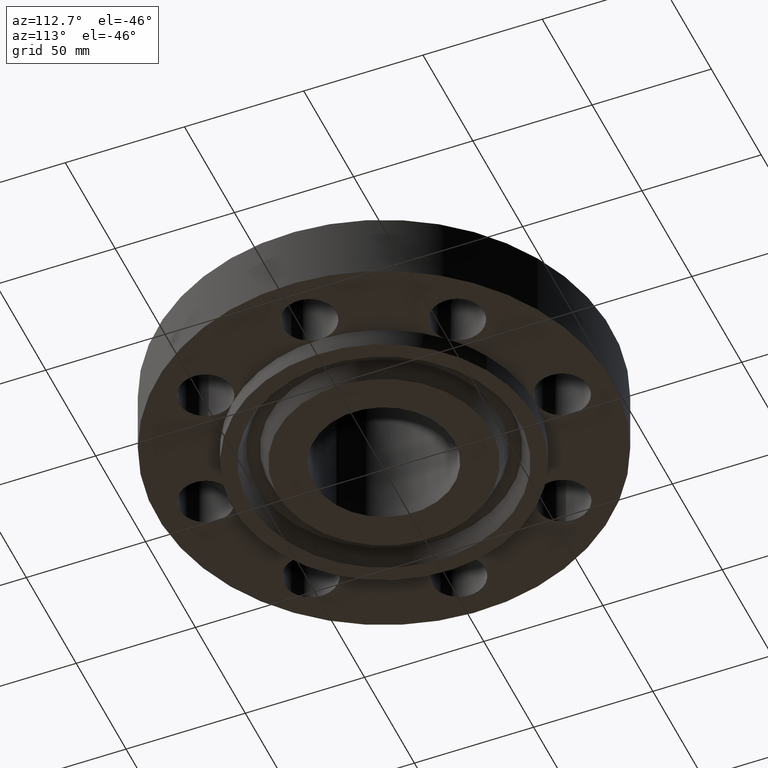
[diagram: clean part render]
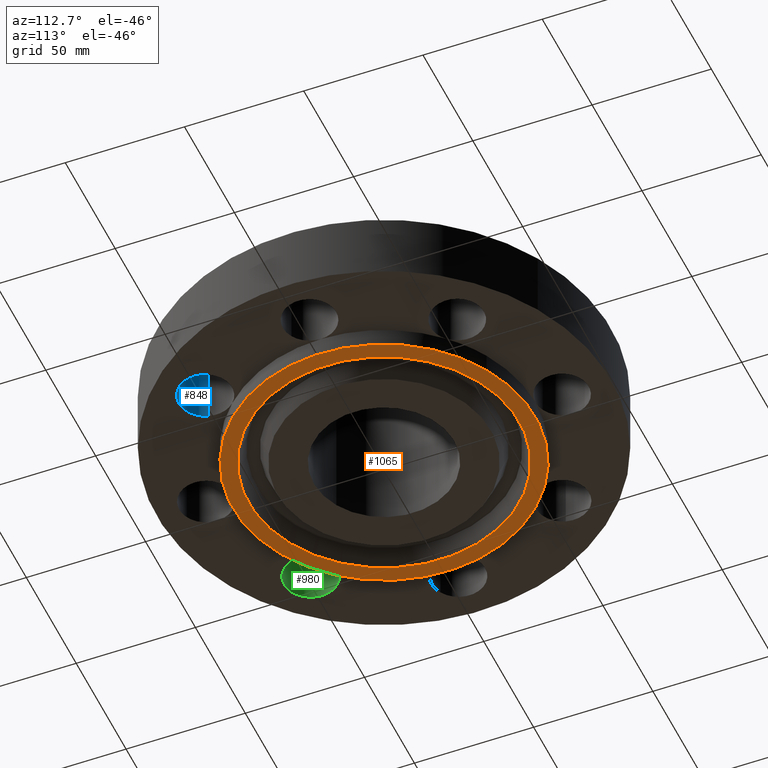
[diagram: same view with three faces highlighted in distinct colors, each labeled with its STEP entity id]
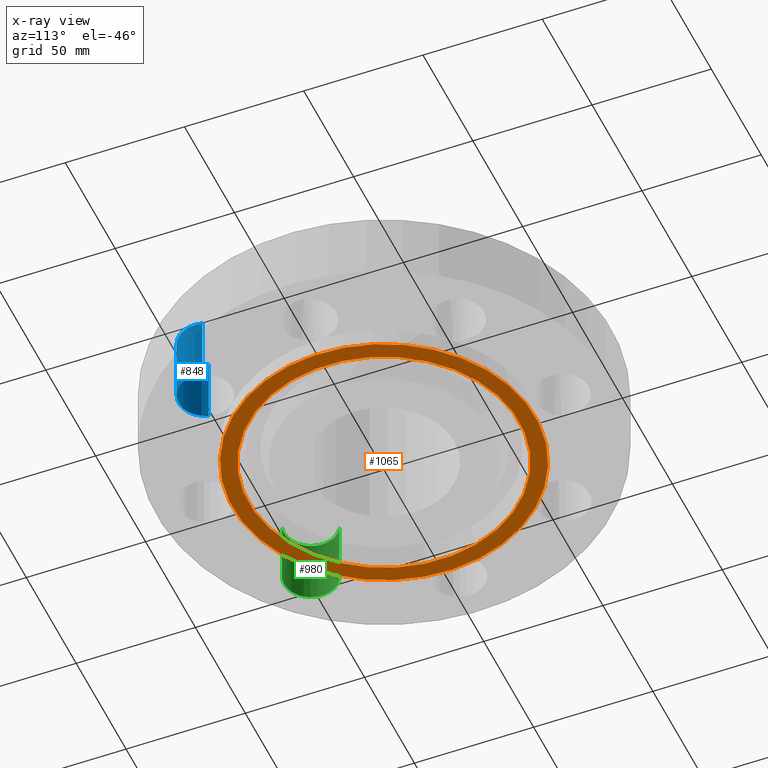
[diagram: x-ray of the same camera — body ghosted, the three highlighted faces saturated]
A machine part, auxiliary view with three faces highlighted in distinct colors.
The next image is the same camera in x-ray (body ghosted, the three faces saturated) — at least one of them is partly hidden behind the body in this view.
Their STEP definitions:

[orange] entity #1065 — the highlighted planar face has unit normal (0, 0, -1).
#439=AXIS2_PLACEMENT_3D('Circle Axis2P3D',#437,#438,$) ;
#504=AXIS2_PLACEMENT_3D('Circle Axis2P3D',#502,#503,$) ;
#1041=AXIS2_PLACEMENT_3D('Plane Axis2P3D',#1038,#1039,#1040) ;
#1049=AXIS2_PLACEMENT_3D('Circle Axis2P3D',#1047,#1048,$) ;
#1058=AXIS2_PLACEMENT_3D('Circle Axis2P3D',#1056,#1057,$) ;
#437=CARTESIAN_POINT('Axis2P3D Location',(0.,0.,-0.313000000001)) ;
#441=CARTESIAN_POINT('Vertex',(-1.19856384652,-2.19395640473,-0.313000000001)) ;
#443=CARTESIAN_POINT('Vertex',(1.19856384652,2.19395640473,-0.313000000001)) ;
#502=CARTESIAN_POINT('Axis2P3D Location',(0.,0.,-0.313000000001)) ;
#1038=CARTESIAN_POINT('Axis2P3D Location',(0.,1.1615,-0.313000000001)) ;
#1047=CARTESIAN_POINT('Axis2P3D Location',(2.09805925913E-016,-1.39870617276E-016,-0.313000000001)) ;
#1051=CARTESIAN_POINT('Vertex',(1.07127636602,-1.96095823455,-0.313000000001)) ;
#1053=CARTESIAN_POINT('Vertex',(-1.07127636602,1.96095823455,-0.313000000001)) ;
#1056=CARTESIAN_POINT('Axis2P3D Location',(0.,-2.79741234551E-016,-0.313000000001)) ;
#438=DIRECTION('Axis2P3D Direction',(0.,0.,-0.0393700787402)) ;
#503=DIRECTION('Axis2P3D Direction',(0.,0.,-0.0393700787402)) ;
#1039=DIRECTION('Axis2P3D Direction',(0.,0.,-0.0393700787402)) ;
#1040=DIRECTION('Axis2P3D XDirection',(0.0393700787402,0.,0.)) ;
#1048=DIRECTION('Axis2P3D Direction',(0.,0.,-0.0393700787402)) ;
#1057=DIRECTION('Axis2P3D Direction',(0.,0.,-0.0393700787402)) ;
#1044=ORIENTED_EDGE('',*,*,#445,.T.) ;
#1045=ORIENTED_EDGE('',*,*,#506,.T.) ;
#1062=ORIENTED_EDGE('',*,*,#1055,.F.) ;
#1063=ORIENTED_EDGE('',*,*,#1060,.F.) ;
#1064=FACE_BOUND('',#1061,.T.) ;
#1065=ADVANCED_FACE('PartBody',(#1046,#1064),#1042,.T.) ;
#440=CIRCLE('generated circle',#439,2.50000000001) ;
#505=CIRCLE('generated circle',#504,2.50000000001) ;
#1050=CIRCLE('generated circle',#1049,2.23450000001) ;
#1059=CIRCLE('generated circle',#1058,2.23450000001) ;
#445=EDGE_CURVE('',#442,#444,#440,.T.) ;
#506=EDGE_CURVE('',#444,#442,#505,.T.) ;
#1055=EDGE_CURVE('',#1052,#1054,#1050,.T.) ;
#1060=EDGE_CURVE('',#1054,#1052,#1059,.T.) ;
#1043=EDGE_LOOP('',(#1044,#1045)) ;
#1061=EDGE_LOOP('',(#1062,#1063)) ;
#1046=FACE_OUTER_BOUND('',#1043,.T.) ;
#1042=PLANE('',#1041) ;
#442=VERTEX_POINT('',#441) ;
#444=VERTEX_POINT('',#443) ;
#1052=VERTEX_POINT('',#1051) ;
#1054=VERTEX_POINT('',#1053) ;

[blue] entity #848 — the highlighted cylindrical surface (edge-blend (fillet) strip) has radius 11.176 mm, axis along (-0, 0, -1).
#683=AXIS2_PLACEMENT_3D('Circle Axis2P3D',#681,#682,$) ;
#821=AXIS2_PLACEMENT_3D('Cylinder Axis2P3D',#818,#819,#820) ;
#839=AXIS2_PLACEMENT_3D('Circle Axis2P3D',#837,#838,$) ;
#678=CARTESIAN_POINT('Vertex',(1.6566920995,-2.2027713304,0.)) ;
#681=CARTESIAN_POINT('Axis2P3D Location',(2.0788939367,-2.0788939367,0.)) ;
#685=CARTESIAN_POINT('Vertex',(2.50109577389,-1.95501654299,0.)) ;
#818=CARTESIAN_POINT('Axis2P3D Location',(2.0788939367,-2.0788939367,1.11606299213)) ;
#823=CARTESIAN_POINT('Line Origine',(2.50109577389,-1.95501654299,0.560000000002)) ;
#827=CARTESIAN_POINT('Vertex',(2.50109577389,-1.95501654299,1.12)) ;
#830=CARTESIAN_POINT('Line Origine',(1.6566920995,-2.2027713304,0.560000000002)) ;
#834=CARTESIAN_POINT('Vertex',(1.6566920995,-2.2027713304,1.12)) ;
#837=CARTESIAN_POINT('Axis2P3D Location',(2.0788939367,-2.0788939367,1.12)) ;
#682=DIRECTION('Axis2P3D Direction',(0.,0.,-0.0393700787402)) ;
#819=DIRECTION('Axis2P3D Direction',(-0.,0.,-0.0393700787402)) ;
#820=DIRECTION('Axis2P3D XDirection',(-0.0377775444876,-0.0110842335096,0.)) ;
#824=DIRECTION('Vector Direction',(0.,0.,-0.0393700787402)) ;
#831=DIRECTION('Vector Direction',(0.,0.,-0.0393700787402)) ;
#838=DIRECTION('Axis2P3D Direction',(-0.,0.,-0.0393700787402)) ;
#825=VECTOR('Line Direction',#824,0.0393700787402) ;
#832=VECTOR('Line Direction',#831,0.0393700787402) ;
#843=ORIENTED_EDGE('',*,*,#829,.F.) ;
#844=ORIENTED_EDGE('',*,*,#687,.T.) ;
#845=ORIENTED_EDGE('',*,*,#836,.T.) ;
#846=ORIENTED_EDGE('',*,*,#841,.F.) ;
#848=ADVANCED_FACE('PartBody',(#847),#822,.F.) ;
#684=CIRCLE('generated circle',#683,0.440000000002) ;
#840=CIRCLE('generated circle',#839,0.440000000002) ;
#822=CYLINDRICAL_SURFACE('generated cylinder',#821,0.440000000002) ;
#687=EDGE_CURVE('',#686,#679,#684,.T.) ;
#829=EDGE_CURVE('',#686,#828,#826,.F.) ;
#836=EDGE_CURVE('',#679,#835,#833,.F.) ;
#841=EDGE_CURVE('',#828,#835,#840,.T.) ;
#842=EDGE_LOOP('',(#843,#844,#845,#846)) ;
#847=FACE_OUTER_BOUND('',#842,.T.) ;
#826=LINE('Line',#823,#825) ;
#833=LINE('Line',#830,#832) ;
#679=VERTEX_POINT('',#678) ;
#686=VERTEX_POINT('',#685) ;
#828=VERTEX_POINT('',#827) ;
#835=VERTEX_POINT('',#834) ;

[green] entity #980 — the highlighted cylindrical surface (edge-blend (fillet) strip) has radius 11.176 mm, axis along (0, 0, -1).
#645=AXIS2_PLACEMENT_3D('Circle Axis2P3D',#643,#644,$) ;
#953=AXIS2_PLACEMENT_3D('Cylinder Axis2P3D',#950,#951,#952) ;
#971=AXIS2_PLACEMENT_3D('Circle Axis2P3D',#969,#970,$) ;
#640=CARTESIAN_POINT('Vertex',(-2.2027713304,-1.6566920995,0.)) ;
#643=CARTESIAN_POINT('Axis2P3D Location',(-2.0788939367,-2.0788939367,0.)) ;
#647=CARTESIAN_POINT('Vertex',(-1.95501654299,-2.50109577389,0.)) ;
#950=CARTESIAN_POINT('Axis2P3D Location',(-2.0788939367,-2.0788939367,1.11606299213)) ;
#955=CARTESIAN_POINT('Line Origine',(-1.95501654299,-2.50109577389,0.560000000002)) ;
#959=CARTESIAN_POINT('Vertex',(-1.95501654299,-2.50109577389,1.12)) ;
#962=CARTESIAN_POINT('Line Origine',(-2.2027713304,-1.6566920995,0.560000000002)) ;
#966=CARTESIAN_POINT('Vertex',(-2.2027713304,-1.6566920995,1.12)) ;
#969=CARTESIAN_POINT('Axis2P3D Location',(-2.0788939367,-2.0788939367,1.12)) ;
#644=DIRECTION('Axis2P3D Direction',(0.,0.,-0.0393700787402)) ;
#951=DIRECTION('Axis2P3D Direction',(0.,0.,-0.0393700787402)) ;
#952=DIRECTION('Axis2P3D XDirection',(-0.0110842335096,0.0377775444876,0.)) ;
#956=DIRECTION('Vector Direction',(0.,0.,-0.0393700787402)) ;
#963=DIRECTION('Vector Direction',(0.,0.,-0.0393700787402)) ;
#970=DIRECTION('Axis2P3D Direction',(0.,0.,-0.0393700787402)) ;
#957=VECTOR('Line Direction',#956,0.0393700787402) ;
#964=VECTOR('Line Direction',#963,0.0393700787402) ;
#975=ORIENTED_EDGE('',*,*,#961,.F.) ;
#976=ORIENTED_EDGE('',*,*,#649,.T.) ;
#977=ORIENTED_EDGE('',*,*,#968,.T.) ;
#978=ORIENTED_EDGE('',*,*,#973,.F.) ;
#980=ADVANCED_FACE('PartBody',(#979),#954,.F.) ;
#646=CIRCLE('generated circle',#645,0.440000000002) ;
#972=CIRCLE('generated circle',#971,0.440000000002) ;
#954=CYLINDRICAL_SURFACE('generated cylinder',#953,0.440000000002) ;
#649=EDGE_CURVE('',#648,#641,#646,.T.) ;
#961=EDGE_CURVE('',#648,#960,#958,.F.) ;
#968=EDGE_CURVE('',#641,#967,#965,.F.) ;
#973=EDGE_CURVE('',#960,#967,#972,.T.) ;
#974=EDGE_LOOP('',(#975,#976,#977,#978)) ;
#979=FACE_OUTER_BOUND('',#974,.T.) ;
#958=LINE('Line',#955,#957) ;
#965=LINE('Line',#962,#964) ;
#641=VERTEX_POINT('',#640) ;
#648=VERTEX_POINT('',#647) ;
#960=VERTEX_POINT('',#959) ;
#967=VERTEX_POINT('',#966) ;